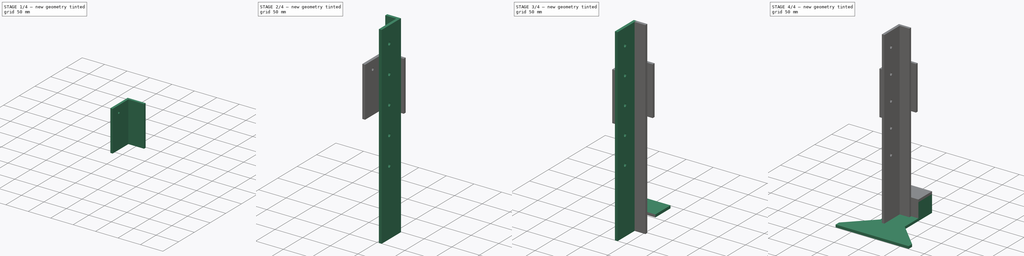
[diagram: build sequence overview — one tinted view per stage of 4, left to right]
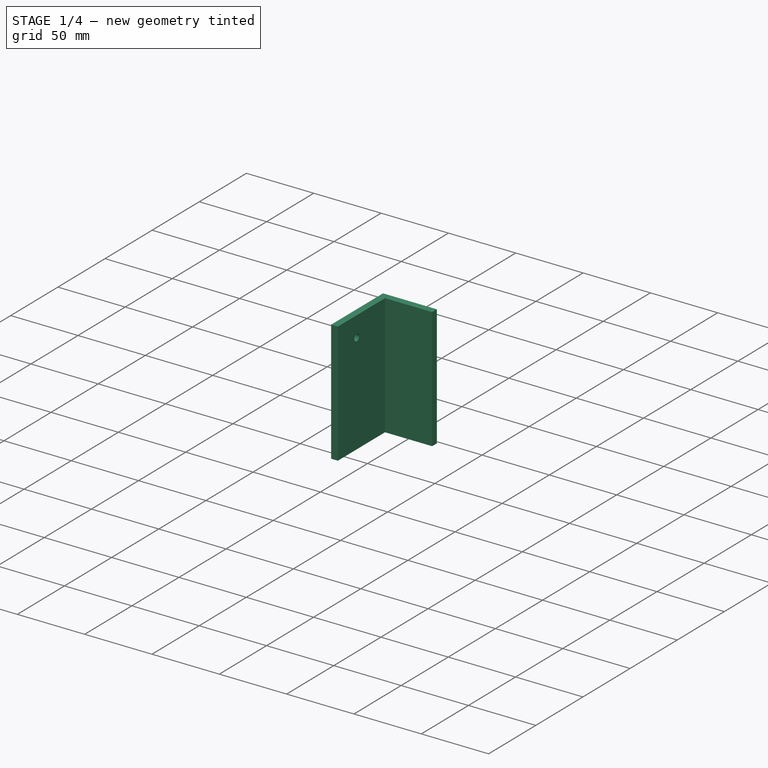
[diagram: stage 1 of 4 — iso view after this stage's code; geometry added in this stage tinted green]
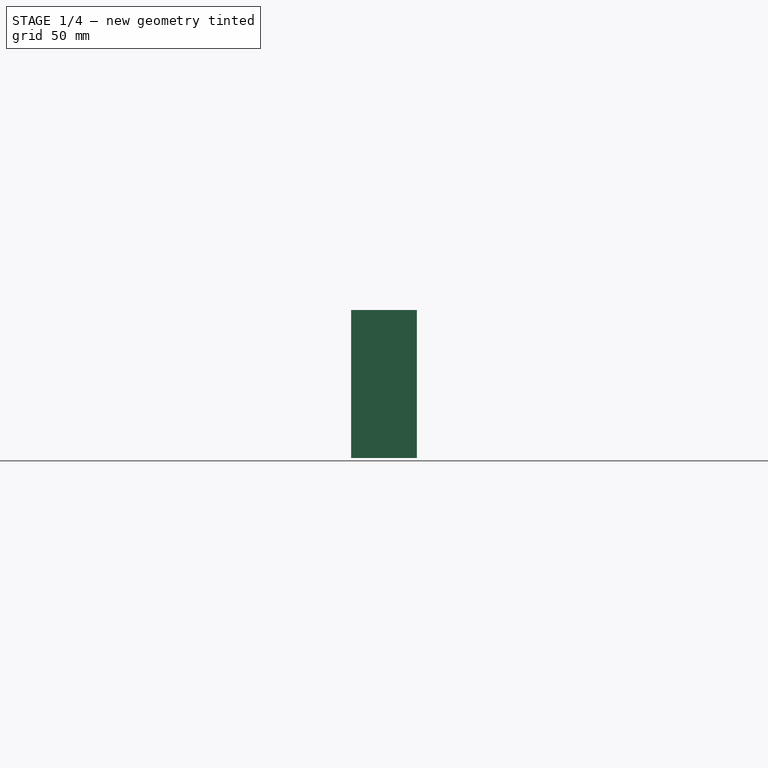
[diagram: stage 1 of 4 — front view after this stage's code; geometry added in this stage tinted green]
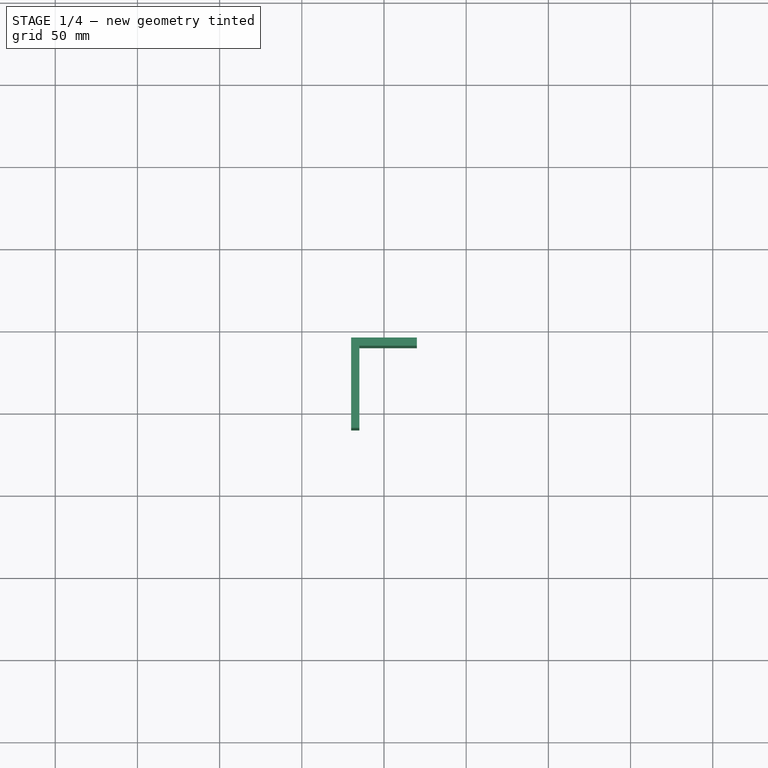
[diagram: stage 1 of 4 — top view after this stage's code; geometry added in this stage tinted green]
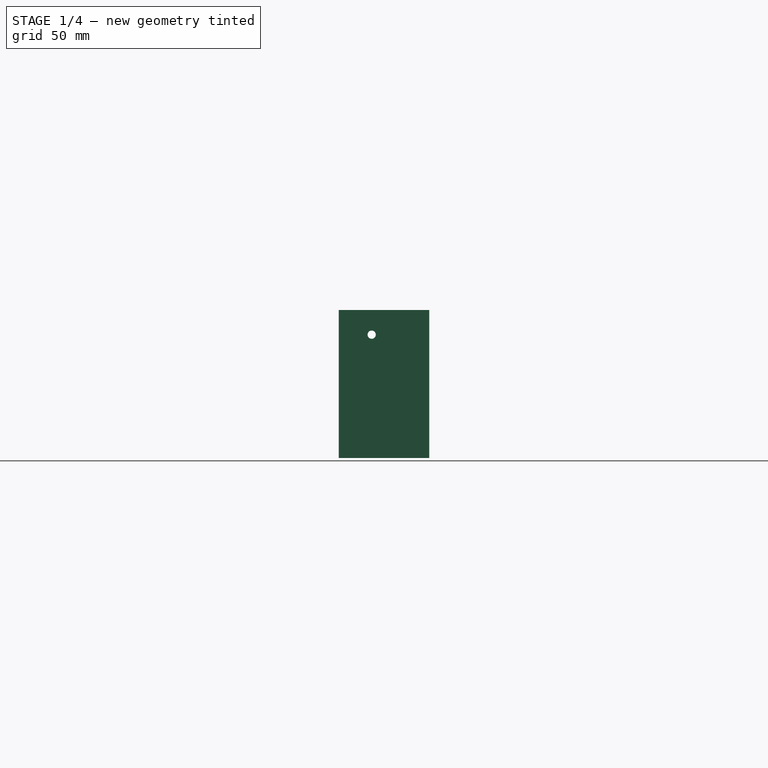
[diagram: stage 1 of 4 — right view after this stage's code; geometry added in this stage tinted green]
FCSTD DOCUMENT  (FreeCAD 0.15R4671 (Git))
Label: stand
License: All rights reserved
LicenseURL: http://en.wikipedia.org/wiki/All_rights_reserved
objects: Sketcher::SketchObject×10, PartDesign::Pad×10, App::DocumentObjectGroup×4, Part::FeaturePython×4
note: 34 computed .brp shape members not serialized (recipe doc carries the construction recipe); baked Part::Feature solids carry a one-line shape summary decoded from their .brp

FEATURE [App::DocumentObjectGroup] Group001  label="Pole"
  Group = -> [Pad011,Pad012,Clone,Clone001]
FEATURE [Sketcher::SketchObject] Sketch013
  Placement = pos=(15,0,0) rot=(0.57735,0.57735,0.57735;2.0944rad)
  sketch-geometry (5):
    g0: LineSegment StartX=-10 StartY=290 StartZ=0 EndX=40 EndY=290 EndZ=0
    g1: LineSegment StartX=40 StartY=290 StartZ=0 EndX=40 EndY=200 EndZ=0
    g2: LineSegment StartX=40 StartY=200 StartZ=0 EndX=-10 EndY=200 EndZ=0
    g3: LineSegment StartX=-10 StartY=200 StartZ=0 EndX=-10 EndY=290 EndZ=0
    g4: Circle CenterX=10 CenterY=275 CenterZ=0 NormalX=0 NormalY=0 NormalZ=1 Radius=2.5
  constraints (15):
    c: Coincident(g0,g1)
    c: Coincident(g1,g2)
    c: Coincident(g2,g3)
    c: Coincident(g3,g0)
    c: Horizontal(g0)
    c: Horizontal(g2)
    c: Vertical(g1)
    c: Vertical(g3)
    c: DistanceX(g0) = 50
    c: DistanceY(g1) = -90
    c: DistanceX(g-1,g2) = -10
    c: Radius(g4) = 2.5
    c: DistanceX(g4,g0) = -20
    c: DistanceY(g4,g0) = 15
    c: DistanceY(g-1,g1) = 200
FEATURE [PartDesign::Pad] Pad013
  Length = 5
  Length2 = 100
  Placement = pos=(15,0,0) rot=(0.57735,0.57735,0.57735;2.0944rad)
  Sketch = -> Sketch013
  Type = 0
FEATURE [Part::FeaturePython] Clone002  label="Clone of Pad013"  # Draft clone (typed FeaturePython)
  Objects = -> [Pad013]
  Placement = pos=(-20,0,0) rot=(0.57735,0.57735,0.57735;2.0944rad)
  Scale = (1,1,1)
FEATURE [Sketcher::SketchObject] Sketch014
  Placement = pos=(0,-10,0) rot=(1,0,0;1.5708rad)
  sketch-geometry (4):
    g0: LineSegment StartX=-20 StartY=290 StartZ=0 EndX=20 EndY=290 EndZ=0
    g1: LineSegment StartX=20 StartY=290 StartZ=0 EndX=20 EndY=200 EndZ=0
    g2: LineSegment StartX=20 StartY=200 StartZ=0 EndX=-20 EndY=200 EndZ=0
    g3: LineSegment StartX=-20 StartY=200 StartZ=0 EndX=-20 EndY=290 EndZ=0
  constraints (12):
    c: Coincident(g0,g1)
    c: Coincident(g1,g2)
    c: Coincident(g2,g3)
    c: Coincident(g3,g0)
    c: Horizontal(g0)
    c: Horizontal(g2)
    c: Vertical(g1)
    c: Vertical(g3)
    c: DistanceX(g0) = 40
    c: DistanceX(g-1,g0) = -20
    c: DistanceY(g-1,g2) = 200
    c: DistanceY(g1) = -90
FEATURE [PartDesign::Pad] Pad014
  Length = 5
  Length2 = 100
  Placement = pos=(0,-10,0) rot=(1,0,0;1.5708rad)
  Sketch = -> Sketch014
  Type = 0
FEATURE [Part::FeaturePython] Clone003  label="Clone of Pad014"  # Draft clone (typed FeaturePython)
  Objects = -> [Pad014]
  Placement = pos=(0,45,0) rot=(1,0,0;1.5708rad)
  Scale = (1,1,1)
FEATURE [App::DocumentObjectGroup] Group003  label="Connector"
  Group = -> [Pad013,Pad014,Clone002,Clone003]
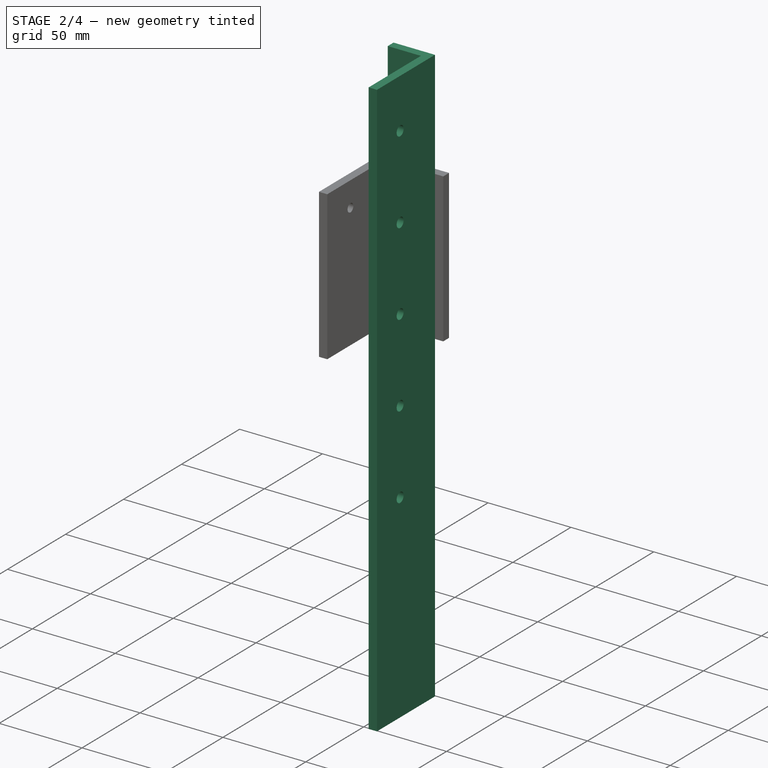
[diagram: stage 2 of 4 — iso view after this stage's code; geometry added in this stage tinted green]
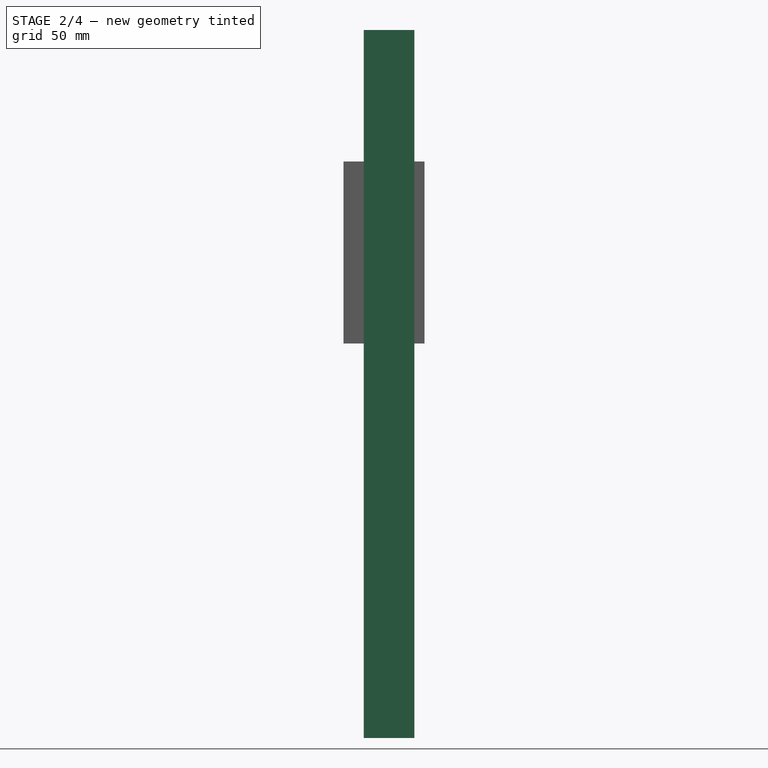
[diagram: stage 2 of 4 — front view after this stage's code; geometry added in this stage tinted green]
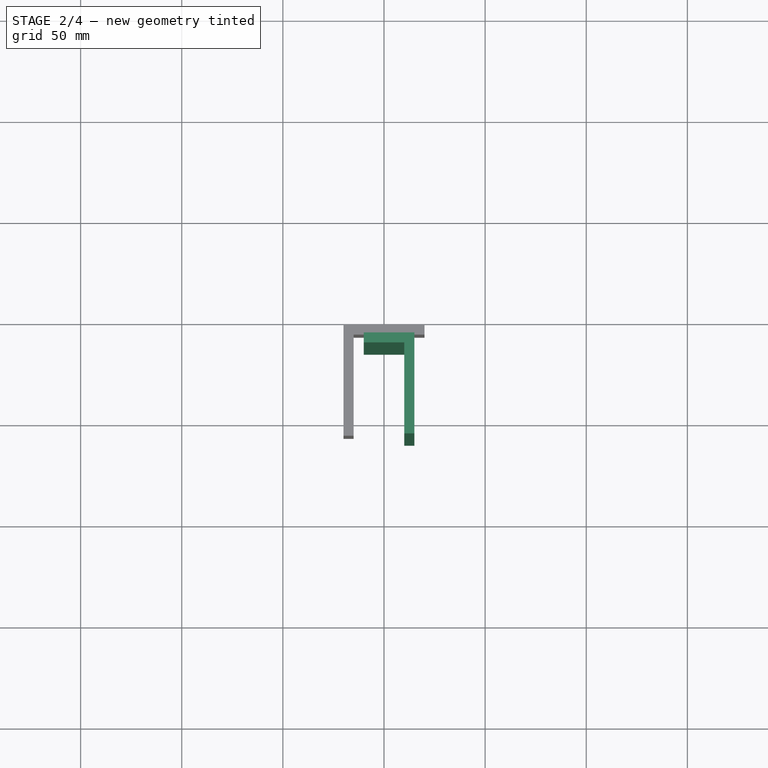
[diagram: stage 2 of 4 — top view after this stage's code; geometry added in this stage tinted green]
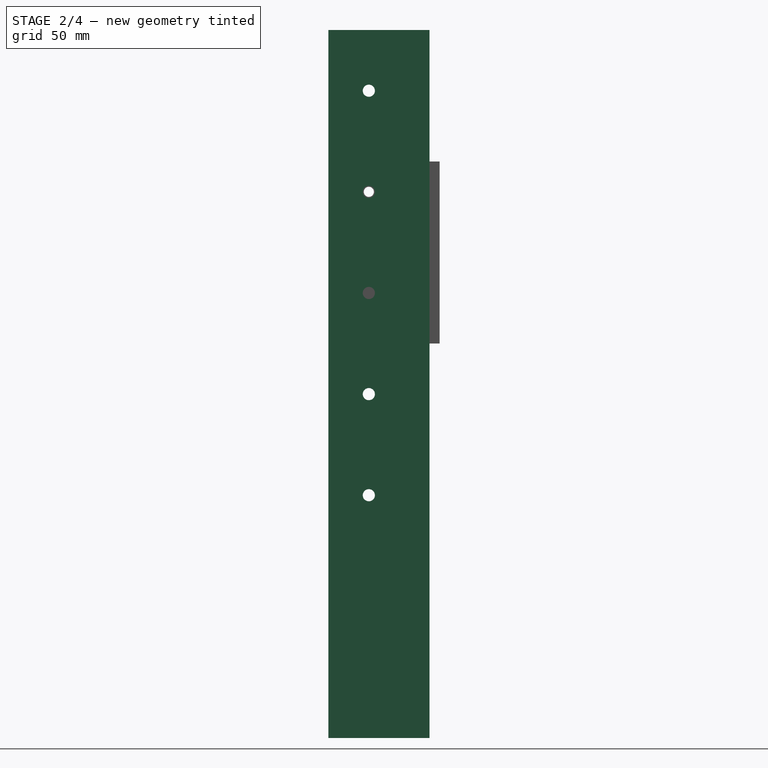
[diagram: stage 2 of 4 — right view after this stage's code; geometry added in this stage tinted green]
FEATURE [App::DocumentObjectGroup] Group002  label="WeightBox"
  Group = -> [Pad006,Pad007,Pad008,Pad009,Pad010]
FEATURE [Sketcher::SketchObject] Sketch011
  Placement = pos=(0,-5,0) rot=(1,0,0;1.5708rad)
  sketch-geometry (4):
    g0: LineSegment StartX=-10 StartY=355 StartZ=0 EndX=10 EndY=355 EndZ=0
    g1: LineSegment StartX=10 StartY=355 StartZ=0 EndX=10 EndY=5 EndZ=0
    g2: LineSegment StartX=10 StartY=5 StartZ=0 EndX=-10 EndY=5 EndZ=0
    g3: LineSegment StartX=-10 StartY=5 StartZ=0 EndX=-10 EndY=355 EndZ=0
  constraints (12):
    c: Coincident(g0,g1)
    c: Coincident(g1,g2)
    c: Coincident(g2,g3)
    c: Coincident(g3,g0)
    c: Horizontal(g0)
    c: Horizontal(g2)
    c: Vertical(g1)
    c: Vertical(g3)
    c: DistanceY(g-1,g1) = 5
    c: Symmetric(g2,g1,g-2)
    c: DistanceX(g2) = -20
    c: DistanceY(g1) = -350
FEATURE [PartDesign::Pad] Pad011
  Length = 5
  Length2 = 100
  Placement = pos=(0,-5,0) rot=(1,0,0;1.5708rad)
  Sketch = -> Sketch011
  Type = 0
FEATURE [Sketcher::SketchObject] Sketch012
  Placement = pos=(10,0,0) rot=(0.57735,0.57735,0.57735;2.0944rad)
  sketch-geometry (9):
    g0: LineSegment StartX=-10 StartY=355 StartZ=0 EndX=40 EndY=355 EndZ=0
    g1: LineSegment StartX=40 StartY=355 StartZ=0 EndX=40 EndY=5 EndZ=0
    g2: LineSegment StartX=40 StartY=5 StartZ=0 EndX=-10 EndY=5 EndZ=0
    g3: LineSegment StartX=-10 StartY=5 StartZ=0 EndX=-10 EndY=355 EndZ=0
    g4: Circle CenterX=10 CenterY=325 CenterZ=0 NormalX=0 NormalY=0 NormalZ=1 Radius=3
    g5: Circle CenterX=10 CenterY=275 CenterZ=0 NormalX=0 NormalY=0 NormalZ=1 Radius=3
    g6: Circle CenterX=10 CenterY=225 CenterZ=0 NormalX=0 NormalY=0 NormalZ=1 Radius=3
    g7: Circle CenterX=10 CenterY=175 CenterZ=0 NormalX=0 NormalY=0 NormalZ=1 Radius=3
    g8: Circle CenterX=10 CenterY=125 CenterZ=0 NormalX=0 NormalY=0 NormalZ=1 Radius=3
  constraints (27):
    c: Coincident(g0,g1)
    c: Coincident(g1,g2)
    c: Coincident(g2,g3)
    c: Coincident(g3,g0)
    c: Horizontal(g0)
    c: Horizontal(g2)
    c: Vertical(g1)
    c: Vertical(g3)
    c: DistanceY(g-1,g1) = 5
    c: DistanceX(g-1,g2) = -10
    c: DistanceY(g1) = -350
    c: DistanceX(g2) = -50
    c: Radius(g4) = 3
    c: DistanceX(g4,g0) = -20
    c: DistanceY(g4,g0) = 30
    c: Radius(g5) = 3
    c: DistanceY(g5,g4) = 50
    c: DistanceX(g5,g0) = -20
    c: Radius(g6) = 3
    c: DistanceY(g6,g5) = 50
    c: DistanceX(g6,g0) = -20
    c: Radius(g7) = 3
    c: DistanceY(g7,g6) = 50
    c: DistanceX(g7,g0) = -20
    c: Radius(g8) = 3
    c: DistanceY(g8,g7) = 50
    c: DistanceX(g8,g0) = -20
FEATURE [PartDesign::Pad] Pad012
  Length = 5
  Length2 = 100
  Placement = pos=(10,0,0) rot=(0.57735,0.57735,0.57735;2.0944rad)
  Sketch = -> Sketch012
  Type = 0
FEATURE [Part::FeaturePython] Clone001  label="Clone of Pad011"  # Draft clone (typed FeaturePython)
  Objects = -> [Pad011]
  Placement = pos=(0,40,0) rot=(1,0,0;1.5708rad)
  Scale = (1,1,1)
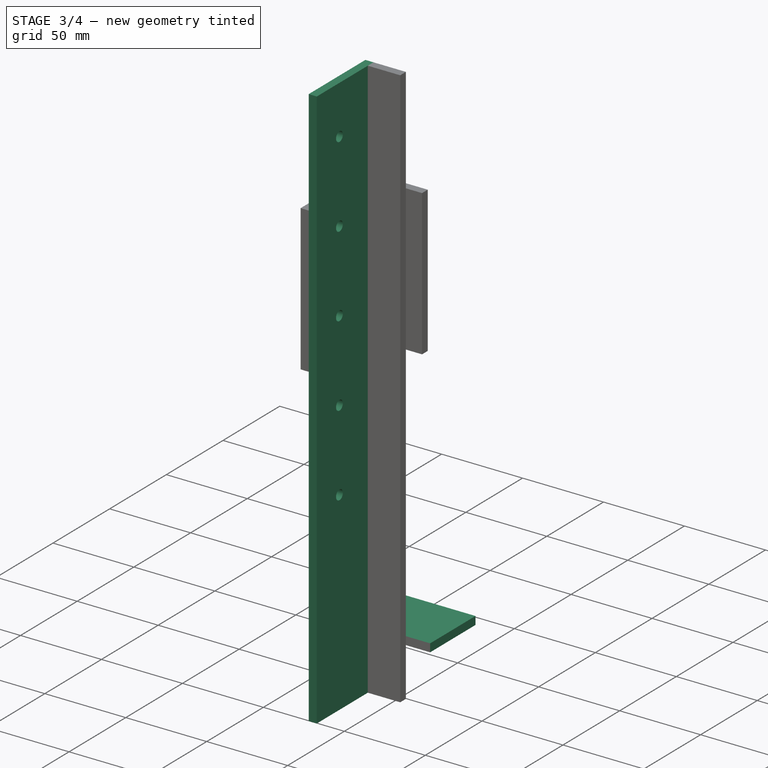
[diagram: stage 3 of 4 — iso view after this stage's code; geometry added in this stage tinted green]
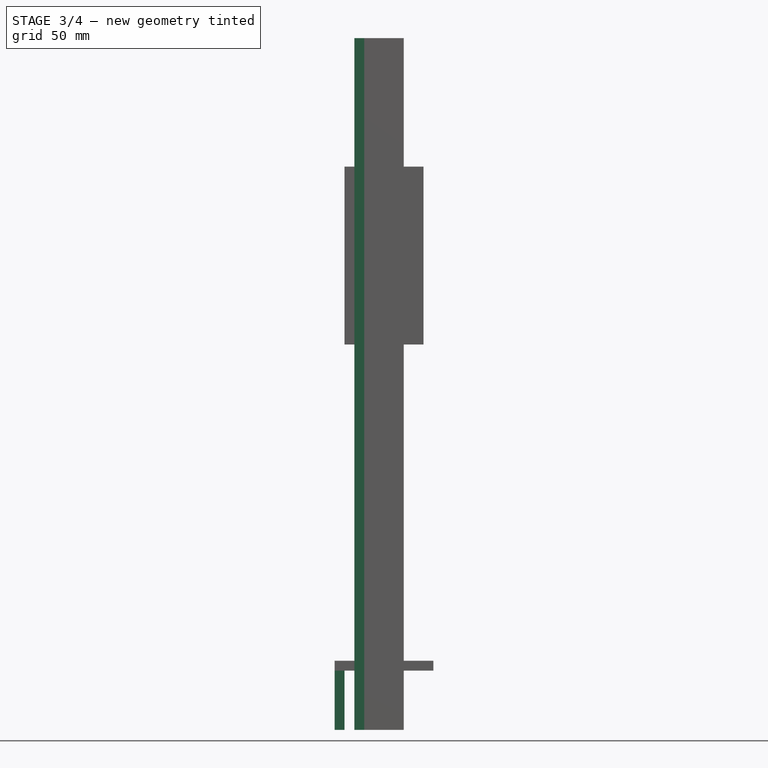
[diagram: stage 3 of 4 — front view after this stage's code; geometry added in this stage tinted green]
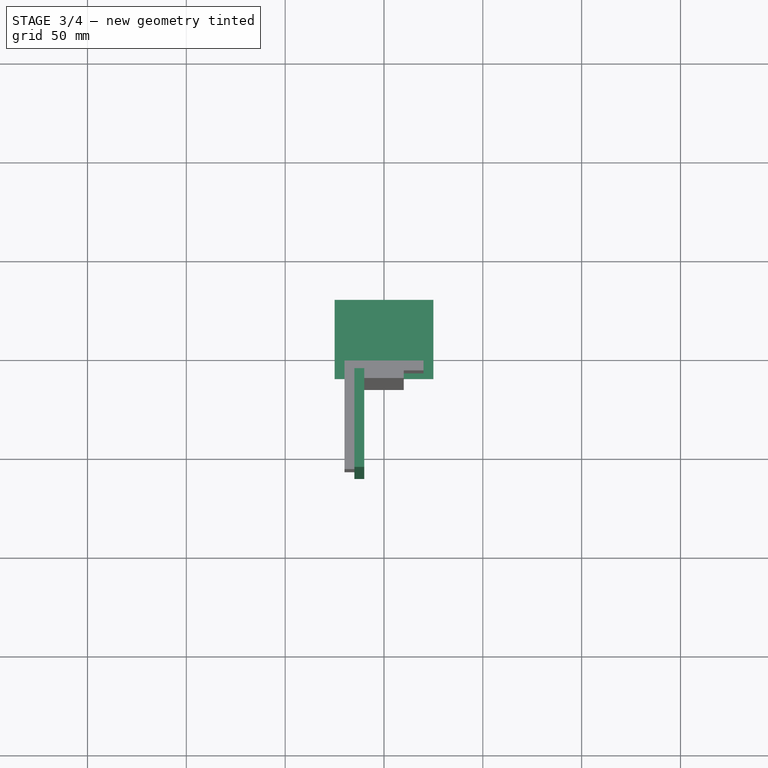
[diagram: stage 3 of 4 — top view after this stage's code; geometry added in this stage tinted green]
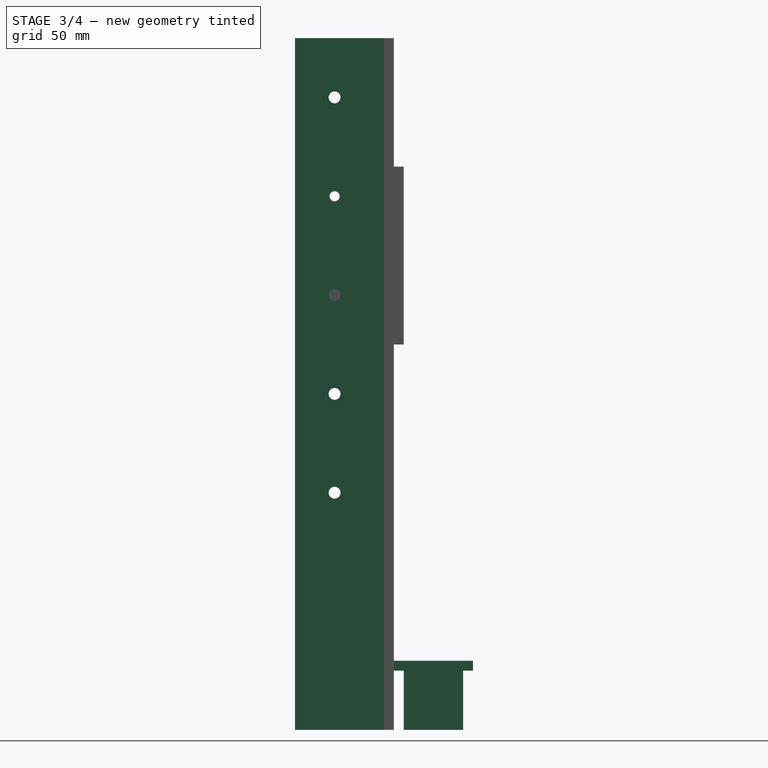
[diagram: stage 3 of 4 — right view after this stage's code; geometry added in this stage tinted green]
FEATURE [Sketcher::SketchObject] Sketch009
  Placement = pos=(-25,0,0) rot=(0.57735,0.57735,0.57735;2.0944rad)
  sketch-geometry (4):
    g0: LineSegment StartX=45 StartY=35 StartZ=0 EndX=75 EndY=35 EndZ=0
    g1: LineSegment StartX=75 StartY=35 StartZ=0 EndX=75 EndY=5 EndZ=0
    g2: LineSegment StartX=75 StartY=5 StartZ=0 EndX=45 EndY=5 EndZ=0
    g3: LineSegment StartX=45 StartY=5 StartZ=0 EndX=45 EndY=35 EndZ=0
  constraints (12):
    c: Coincident(g0,g1)
    c: Coincident(g1,g2)
    c: Coincident(g2,g3)
    c: Coincident(g3,g0)
    c: Horizontal(g0)
    c: Horizontal(g2)
    c: Vertical(g1)
    c: Vertical(g3)
    c: DistanceX(g0,g0) = 30
    c: DistanceY(g3,g3) = 30
    c: DistanceY(g-1,g2) = 5
    c: DistanceX(g-1,g2) = 45
FEATURE [PartDesign::Pad] Pad009
  Length = 5
  Length2 = 100
  Placement = pos=(-25,0,0) rot=(0.57735,0.57735,0.57735;2.0944rad)
  Sketch = -> Sketch009
  Type = 0
FEATURE [Sketcher::SketchObject] Sketch010
  Placement = pos=(0,0,35) rot=(0,0,1;0rad)
  sketch-geometry (4):
    g0: LineSegment StartX=-25 StartY=80 StartZ=0 EndX=25 EndY=80 EndZ=0
    g1: LineSegment StartX=25 StartY=80 StartZ=0 EndX=25 EndY=40 EndZ=0
    g2: LineSegment StartX=25 StartY=40 StartZ=0 EndX=-25 EndY=40 EndZ=0
    g3: LineSegment StartX=-25 StartY=40 StartZ=0 EndX=-25 EndY=80 EndZ=0
  constraints (12):
    c: Coincident(g0,g1)
    c: Coincident(g1,g2)
    c: Coincident(g2,g3)
    c: Coincident(g3,g0)
    c: Horizontal(g0)
    c: Horizontal(g2)
    c: Vertical(g1)
    c: Vertical(g3)
    c: DistanceX(g0,g0) = 50
    c: DistanceY(g1,g1) = 40
    c: Symmetric(g1,g2,g-2)
    c: DistanceY(g-1,g1) = 40
FEATURE [PartDesign::Pad] Pad010
  Length = 5
  Length2 = 100
  Placement = pos=(0,0,35) rot=(0,0,1;0rad)
  Sketch = -> Sketch010
  Type = 0
FEATURE [Part::FeaturePython] Clone  label="Clone of Pad012"  # Draft clone (typed FeaturePython)
  Objects = -> [Pad012]
  Placement = pos=(-15,0,0) rot=(0.57735,0.57735,0.57735;2.0944rad)
  Scale = (1,1,1)
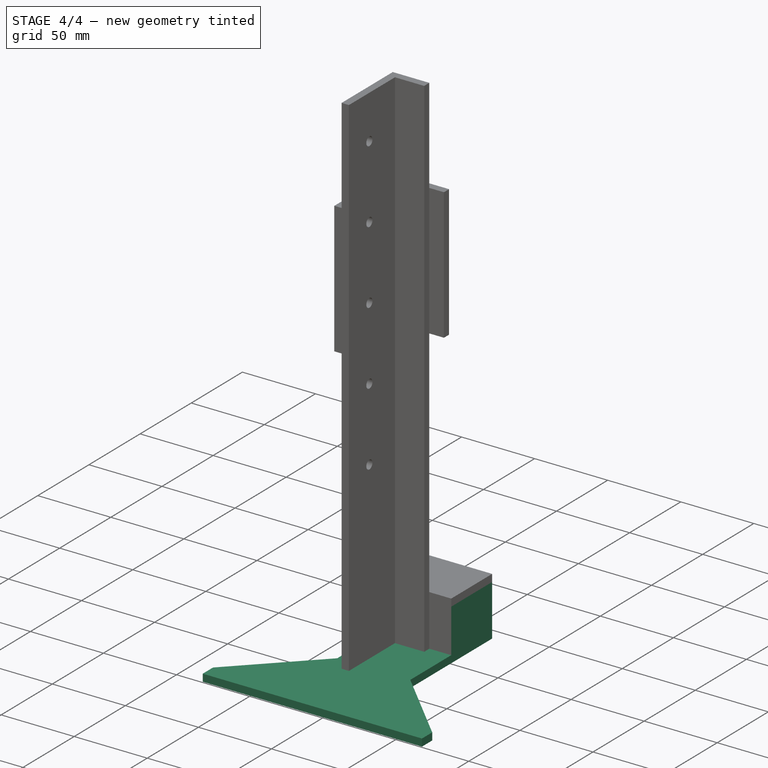
[diagram: stage 4 of 4 — iso view after this stage's code; geometry added in this stage tinted green]
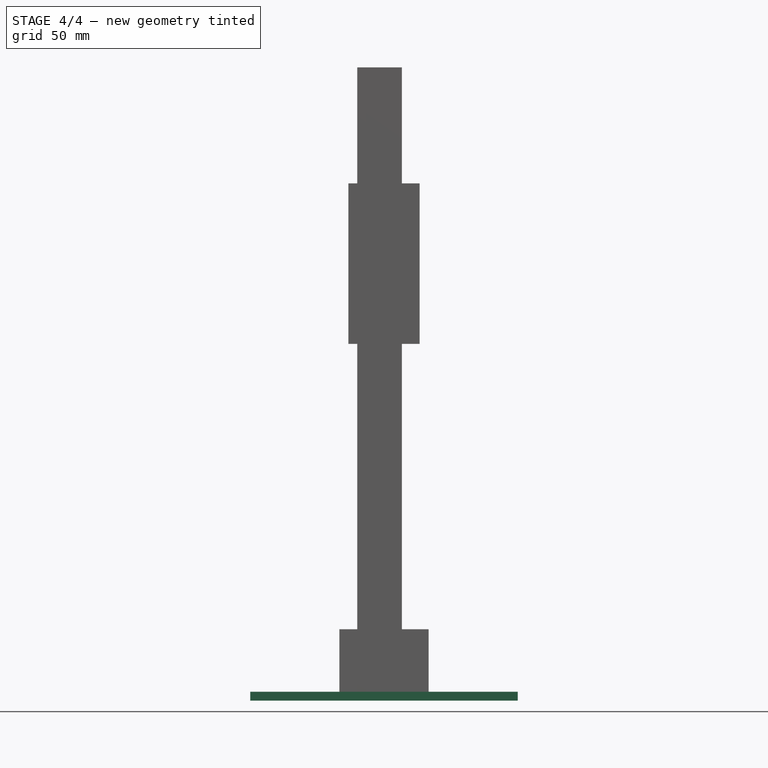
[diagram: stage 4 of 4 — front view after this stage's code; geometry added in this stage tinted green]
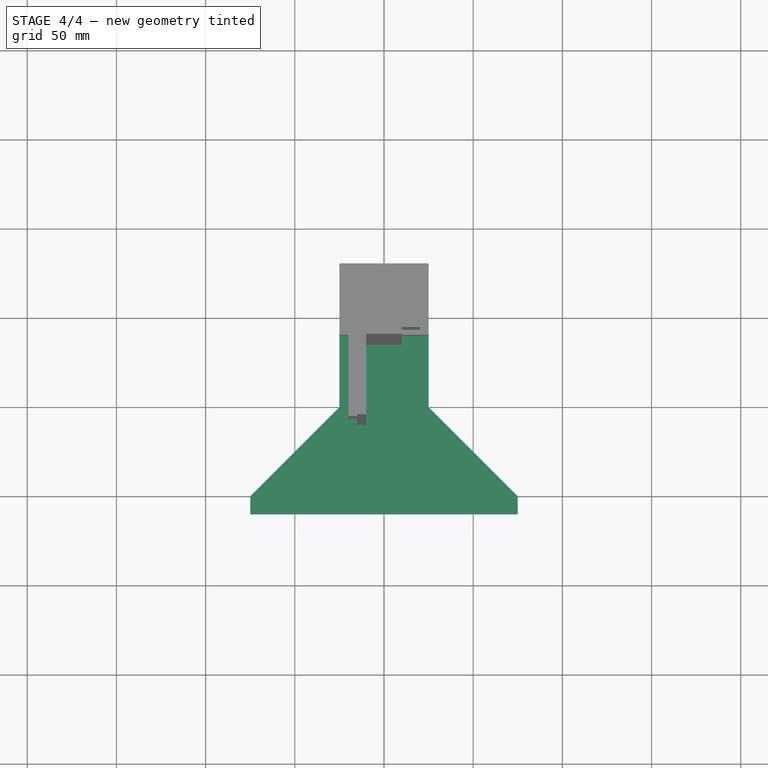
[diagram: stage 4 of 4 — top view after this stage's code; geometry added in this stage tinted green]
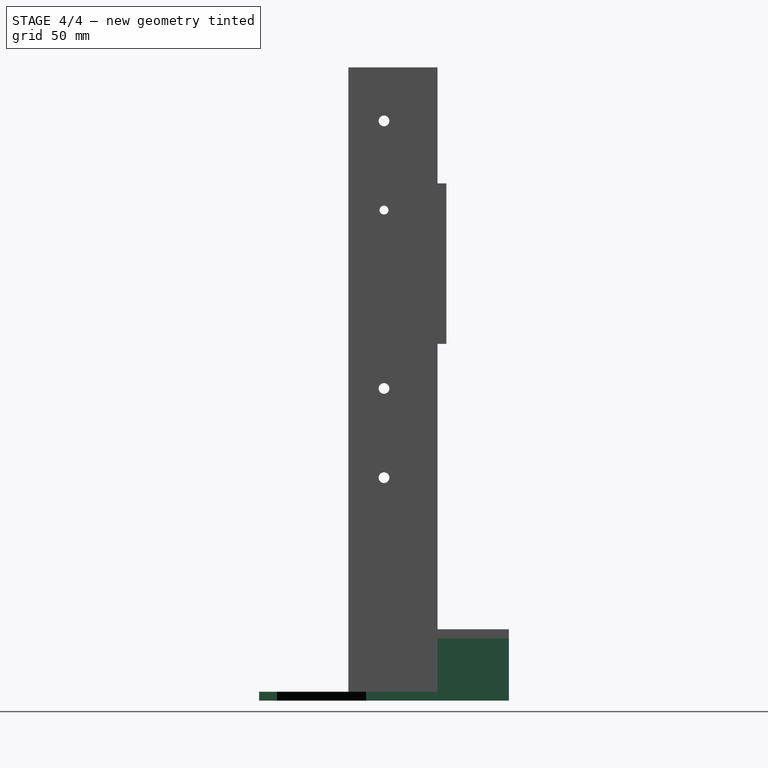
[diagram: stage 4 of 4 — right view after this stage's code; geometry added in this stage tinted green]
FEATURE [Sketcher::SketchObject] Sketch
  sketch-geometry (8):
    g0: LineSegment StartX=-25 StartY=80 StartZ=0 EndX=25 EndY=80 EndZ=0
    g1: LineSegment StartX=25 StartY=80 StartZ=0 EndX=25 EndY=0 EndZ=0
    g2: LineSegment StartX=75 StartY=-60 StartZ=0 EndX=-75 EndY=-60 EndZ=0
    g3: LineSegment StartX=-25 StartY=0 StartZ=0 EndX=-25 EndY=80 EndZ=0
    g4: LineSegment StartX=-25 StartY=0 StartZ=0 EndX=-75 EndY=-50 EndZ=0
    g5: LineSegment StartX=-75 StartY=-50 StartZ=0 EndX=-75 EndY=-60 EndZ=0
    g6: LineSegment StartX=25 StartY=0 StartZ=0 EndX=75 EndY=-50 EndZ=0
    g7: LineSegment StartX=75 StartY=-50 StartZ=0 EndX=75 EndY=-60 EndZ=0
  constraints (24):
    c: Horizontal(g0)
    c: Coincident(g0,g1)
    c: Vertical(g1)
    c: Horizontal(g2)
    c: PointOnObject(g3,g-1)
    c: Vertical(g3)
    c: Coincident(g0,g3)
    c: Symmetric(g0,g0,g-2)
    c: DistanceX(g0,g0) = 50
    c: DistanceY(g3,g3) = 80
    c: Symmetric(g2,g2,g-2)
    c: DistanceX(g2,g2) = 150
    c: DistanceY(g1,g1) = 80
    c: Coincident(g4,g5)
    c: Coincident(g2,g5)
    c: Vertical(g5)
    c: DistanceY(g5,g5) = 10
    c: Coincident(g6,g7)
    c: Coincident(g2,g7)
    c: Coincident(g1,g6)
    c: Vertical(g7)
    c: DistanceY(g7,g7) = 10
    c: Coincident(g3,g4)
    c: Angle(g5,g4) = 2.35619
FEATURE [PartDesign::Pad] Pad
  Length = 5
  Length2 = 100
  Sketch = -> Sketch
  Type = 0
FEATURE [App::DocumentObjectGroup] Group  label="Base"
  Group = -> [Pad]
FEATURE [Sketcher::SketchObject] Sketch006
  Placement = pos=(0,80,0) rot=(1,0,0;1.5708rad)
  sketch-geometry (4):
    g0: LineSegment StartX=-25 StartY=35 StartZ=0 EndX=25 EndY=35 EndZ=0
    g1: LineSegment StartX=25 StartY=35 StartZ=0 EndX=25 EndY=5 EndZ=0
    g2: LineSegment StartX=25 StartY=5 StartZ=0 EndX=-25 EndY=5 EndZ=0
    g3: LineSegment StartX=-25 StartY=5 StartZ=0 EndX=-25 EndY=35 EndZ=0
  constraints (12):
    c: Coincident(g0,g1)
    c: Coincident(g1,g2)
    c: Coincident(g2,g3)
    c: Coincident(g3,g0)
    c: Horizontal(g0)
    c: Horizontal(g2)
    c: Vertical(g1)
    c: Vertical(g3)
    c: DistanceX(g0,g0) = 50
    c: DistanceY(g3,g3) = 30
    c: DistanceY(g-1,g1) = 5
    c: Symmetric(g0,g0,g-2)
FEATURE [PartDesign::Pad] Pad006
  Length = 5
  Length2 = 100
  Placement = pos=(0,80,0) rot=(1,0,0;1.5708rad)
  Sketch = -> Sketch006
  Type = 0
FEATURE [Sketcher::SketchObject] Sketch007
  Placement = pos=(0,45,0) rot=(1,0,0;1.5708rad)
  sketch-geometry (4):
    g0: LineSegment StartX=-25 StartY=35 StartZ=0 EndX=25 EndY=35 EndZ=0
    g1: LineSegment StartX=25 StartY=35 StartZ=0 EndX=25 EndY=5 EndZ=0
    g2: LineSegment StartX=25 StartY=5 StartZ=0 EndX=-25 EndY=5 EndZ=0
    g3: LineSegment StartX=-25 StartY=5 StartZ=0 EndX=-25 EndY=35 EndZ=0
  constraints (12):
    c: Coincident(g0,g1)
    c: Coincident(g1,g2)
    c: Coincident(g2,g3)
    c: Coincident(g3,g0)
    c: Horizontal(g0)
    c: Horizontal(g2)
    c: Vertical(g1)
    c: Vertical(g3)
    c: DistanceX(g0,g0) = 50
    c: DistanceY(g3,g3) = 30
    c: DistanceY(g-1,g1) = 5
    c: Symmetric(g0,g0,g-2)
FEATURE [PartDesign::Pad] Pad007
  Length = 5
  Length2 = 100
  Placement = pos=(0,45,0) rot=(1,0,0;1.5708rad)
  Sketch = -> Sketch007
  Type = 0
FEATURE [Sketcher::SketchObject] Sketch008
  Placement = pos=(20,0,0) rot=(0.57735,0.57735,0.57735;2.0944rad)
  sketch-geometry (4):
    g0: LineSegment StartX=45 StartY=35 StartZ=0 EndX=75 EndY=35 EndZ=0
    g1: LineSegment StartX=75 StartY=35 StartZ=0 EndX=75 EndY=5 EndZ=0
    g2: LineSegment StartX=75 StartY=5 StartZ=0 EndX=45 EndY=5 EndZ=0
    g3: LineSegment StartX=45 StartY=5 StartZ=0 EndX=45 EndY=35 EndZ=0
  constraints (12):
    c: Coincident(g0,g1)
    c: Coincident(g1,g2)
    c: Coincident(g2,g3)
    c: Coincident(g3,g0)
    c: Horizontal(g0)
    c: Horizontal(g2)
    c: Vertical(g1)
    c: Vertical(g3)
    c: DistanceX(g0,g0) = 30
    c: DistanceY(g3,g3) = 30
    c: DistanceY(g-1,g2) = 5
    c: DistanceX(g-1,g2) = 45
FEATURE [PartDesign::Pad] Pad008
  Length = 5
  Length2 = 100
  Placement = pos=(20,0,0) rot=(0.57735,0.57735,0.57735;2.0944rad)
  Sketch = -> Sketch008
  Type = 0
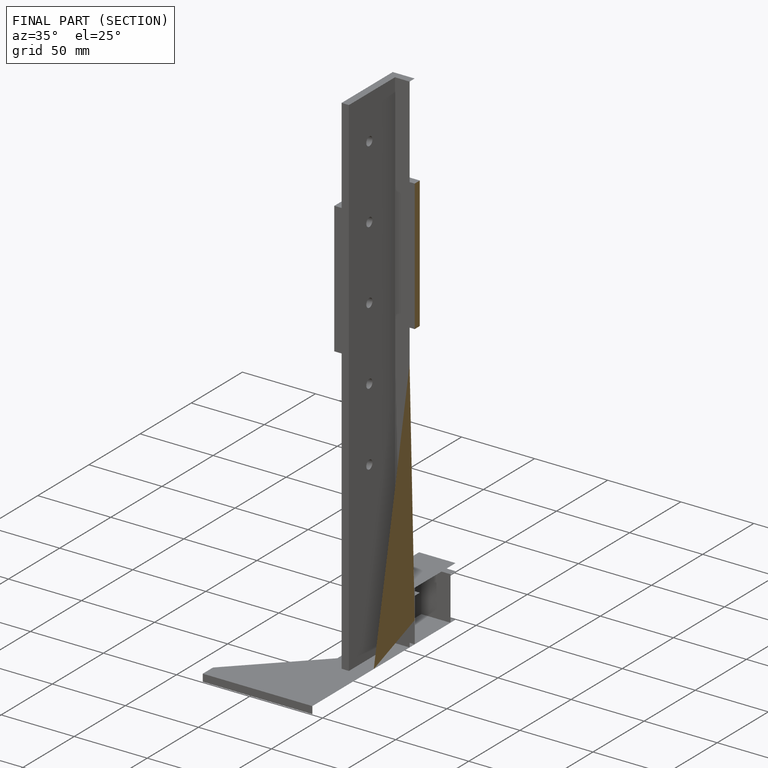
[diagram: finished part — half-section view (interior)]
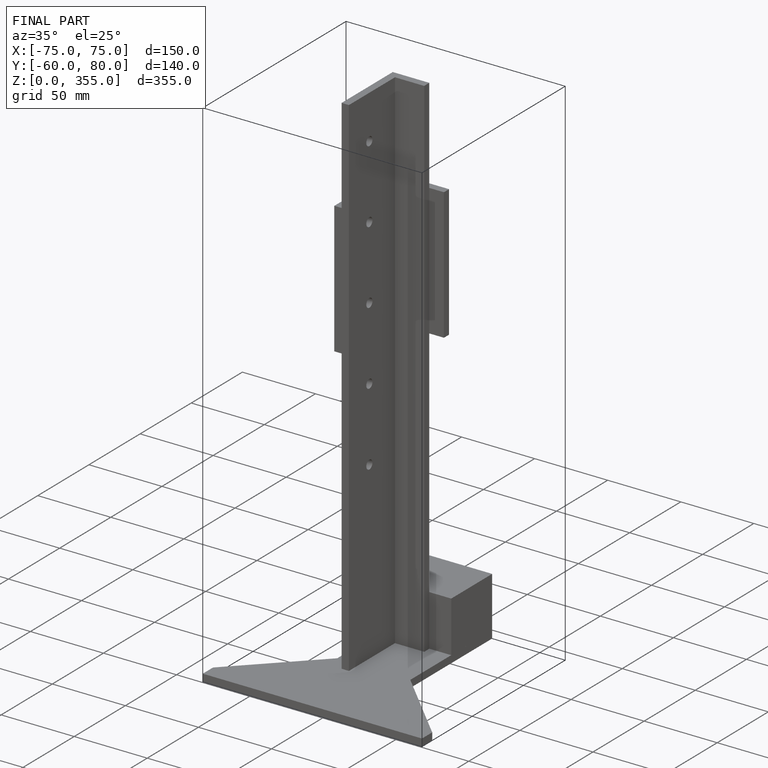
[diagram: finished part — iso view with bounding-box wireframe]
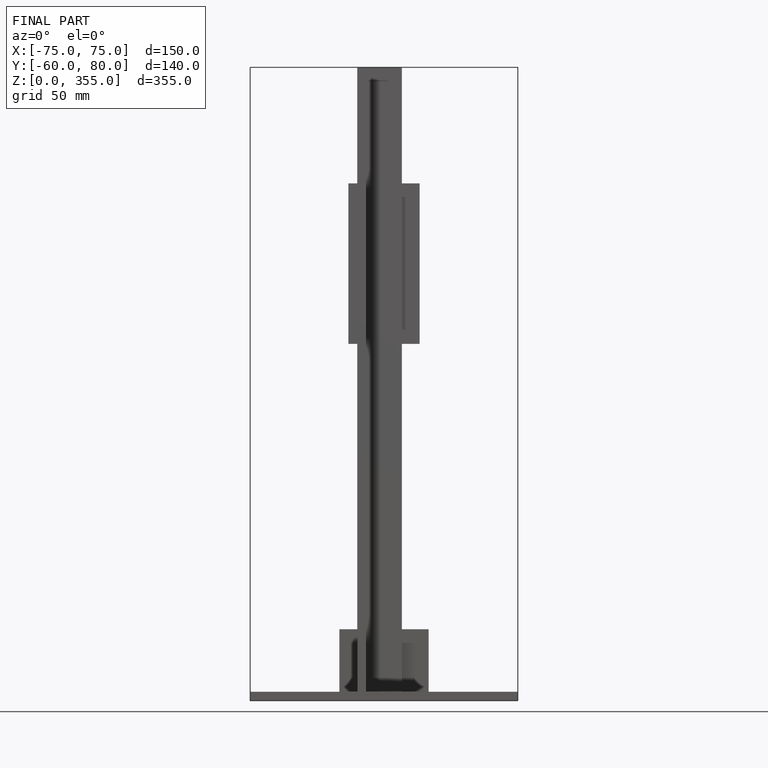
[diagram: finished part — front view with bounding-box wireframe]
